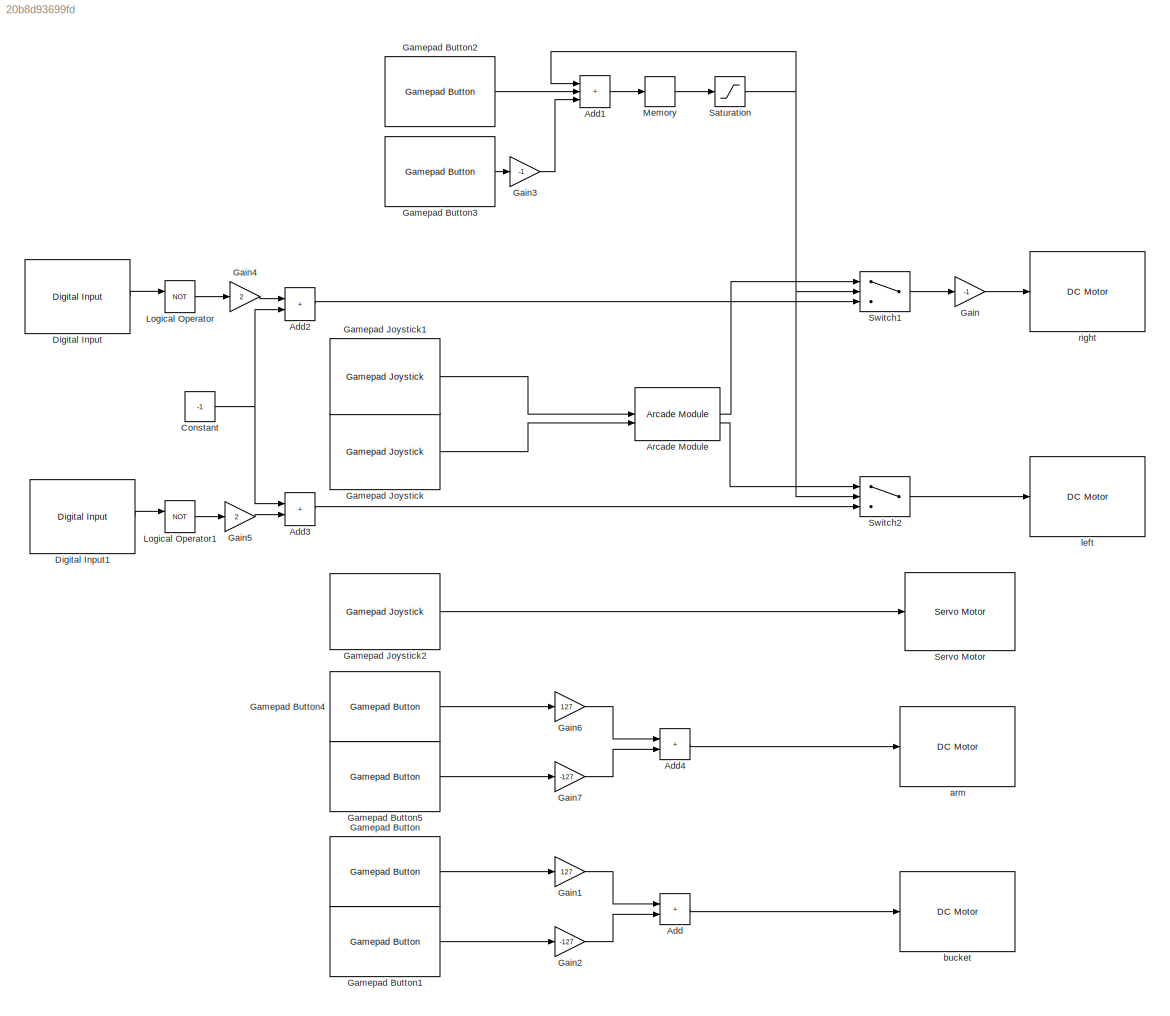
MODEL slx_20b8d93699fd
KIND model
CONFIG AbsTol = auto
CONFIG EnableMultiTasking = off
CONFIG FixedStep = auto
CONFIG MaxStep = auto
CONFIG MinStep = auto
CONFIG RelTol = 1e-3
CONFIG SampleTimeConstraint = Unconstrained
CONFIG SolverName = VariableStepAuto
CONFIG StartTime = 0.0
CONFIG StopTime = 10.0
BLOCK [Sum] Add
  IconShape = rectangular
BLOCK [Sum] Add1
  IconShape = rectangular
  Inputs = +++
BLOCK [Sum] Add2
  IconShape = rectangular
BLOCK [Sum] Add3
  IconShape = rectangular
BLOCK [Sum] Add4
  IconShape = rectangular
BLOCK [Reference] Arcade Module  REF=vexcommonlib/Arcade Module
  LibrarySourceBlock = vexarmcortexlib/Utilities/Arcade Module
  SourceBlock = vexcommonlib/Arcade Module
  SourceType = Arcade-2 Motors Module
BLOCK [Constant] Constant
  Value = -1
BLOCK [Reference] Digital Input  REF=vexarmcortexlib/Sensors/Digital Input
  SourceBlock = vexarmcortexlib/Sensors/Digital Input
  SourceType = Digital Input
BLOCK [Reference] Digital Input1  REF=vexarmcortexlib/Sensors/Digital Input
  SourceBlock = vexarmcortexlib/Sensors/Digital Input
  SourceType = Digital Input
BLOCK [Gain] Gain
  Gain = -1
BLOCK [Gain] Gain1
  Gain = 127
BLOCK [Gain] Gain2
  Gain = -127
BLOCK [Gain] Gain3
  Gain = -1
BLOCK [Gain] Gain4
  Gain = 2
BLOCK [Gain] Gain5
  Gain = 2
BLOCK [Gain] Gain6
  Gain = 127
BLOCK [Gain] Gain7
  Gain = -127
BLOCK [Reference] Gamepad Button  REF=vexarmcortexlib/Gamepad/Gamepad Button
  SourceBlock = vexarmcortexlib/Gamepad/Gamepad Button
  SourceType = Gamepad Button
BLOCK [Reference] Gamepad Button1  REF=vexarmcortexlib/Gamepad/Gamepad Button
  SourceBlock = vexarmcortexlib/Gamepad/Gamepad Button
  SourceType = Gamepad Button
BLOCK [Reference] Gamepad Button2  REF=vexarmcortexlib/Gamepad/Gamepad Button
  SourceBlock = vexarmcortexlib/Gamepad/Gamepad Button
  SourceType = Gamepad Button
BLOCK [Reference] Gamepad Button3  REF=vexarmcortexlib/Gamepad/Gamepad Button
  SourceBlock = vexarmcortexlib/Gamepad/Gamepad Button
  SourceType = Gamepad Button
BLOCK [Reference] Gamepad Button4  REF=vexarmcortexlib/Gamepad/Gamepad Button
  SourceBlock = vexarmcortexlib/Gamepad/Gamepad Button
  SourceType = Gamepad Button
BLOCK [Reference] Gamepad Button5  REF=vexarmcortexlib/Gamepad/Gamepad Button
  SourceBlock = vexarmcortexlib/Gamepad/Gamepad Button
  SourceType = Gamepad Button
BLOCK [Reference] Gamepad Joystick  REF=vexarmcortexlib/Gamepad/Gamepad Joystick
  SourceBlock = vexarmcortexlib/Gamepad/Gamepad Joystick
  SourceType = Gamepad Joystick
BLOCK [Reference] Gamepad Joystick1  REF=vexarmcortexlib/Gamepad/Gamepad Joystick
  SourceBlock = vexarmcortexlib/Gamepad/Gamepad Joystick
  SourceType = Gamepad Joystick
BLOCK [Reference] Gamepad Joystick2  REF=vexarmcortexlib/Gamepad/Gamepad Joystick
  SourceBlock = vexarmcortexlib/Gamepad/Gamepad Joystick
  SourceType = Gamepad Joystick
BLOCK [Logic] Logical Operator
  AllPortsSameDT = off
  Operator = NOT
  OutDataTypeStr = boolean
BLOCK [Logic] Logical Operator1
  AllPortsSameDT = off
  Operator = NOT
  OutDataTypeStr = boolean
BLOCK [Memory] Memory
  InitialCondition = 1
BLOCK [Saturate] Saturation
  LowerLimit = 0
  UpperLimit = 1
BLOCK [Reference] Servo Motor  REF=vexarmcortexlib/Actuators/Servo Motor
  SourceBlock = vexarmcortexlib/Actuators/Servo Motor
  SourceType = Servo Motor
BLOCK [Switch] Switch1
  Criteria = u2 ~= 0
  InputSameDT = off
  SaturateOnIntegerOverflow = off
BLOCK [Switch] Switch2
  Criteria = u2 ~= 0
  InputSameDT = off
  SaturateOnIntegerOverflow = off
BLOCK [Reference] arm  REF=vexarmcortexlib/Actuators/DC Motor
  SourceBlock = vexarmcortexlib/Actuators/DC Motor
  SourceType = DC Motor
BLOCK [Reference] bucket  REF=vexarmcortexlib/Actuators/DC Motor
  SourceBlock = vexarmcortexlib/Actuators/DC Motor
  SourceType = DC Motor
BLOCK [Reference] left  REF=vexarmcortexlib/Actuators/DC Motor
  SourceBlock = vexarmcortexlib/Actuators/DC Motor
  SourceType = DC Motor
BLOCK [Reference] right  REF=vexarmcortexlib/Actuators/DC Motor
  SourceBlock = vexarmcortexlib/Actuators/DC Motor
  SourceType = DC Motor
LINE Add1:1 -> Memory:1
LINE Add2:1 -> Switch1:3
LINE Add3:1 -> Switch2:3
LINE Add4:1 -> arm:1
LINE Add:1 -> bucket:1
LINE Arcade Module:1 -> Switch1:1
LINE Arcade Module:2 -> Switch2:1
NET Constant:1 -> Add2:2, Add3:1
LINE Digital Input1:1 -> Logical Operator1:1
LINE Digital Input:1 -> Logical Operator:1
LINE Gain1:1 -> Add:1
LINE Gain2:1 -> Add:2
LINE Gain3:1 -> Add1:3
LINE Gain4:1 -> Add2:1
LINE Gain5:1 -> Add3:2
LINE Gain6:1 -> Add4:1
LINE Gain7:1 -> Add4:2
LINE Gain:1 -> right:1
LINE Gamepad Button1:1 -> Gain2:1
LINE Gamepad Button2:1 -> Add1:2
LINE Gamepad Button3:1 -> Gain3:1
LINE Gamepad Button4:1 -> Gain6:1
LINE Gamepad Button5:1 -> Gain7:1
LINE Gamepad Button:1 -> Gain1:1
LINE Gamepad Joystick1:1 -> Arcade Module:1
LINE Gamepad Joystick2:1 -> Servo Motor:1
LINE Gamepad Joystick:1 -> Arcade Module:2
LINE Logical Operator1:1 -> Gain5:1
LINE Logical Operator:1 -> Gain4:1
LINE Memory:1 -> Saturation:1
NET Saturation:1 -> Add1:1, Switch1:2, Switch2:2
LINE Switch1:1 -> Gain:1
LINE Switch2:1 -> left:1
note: NET lines group one-source signal fan-out (src -> all destinations, sorted); 1:1 wires keep LINE
